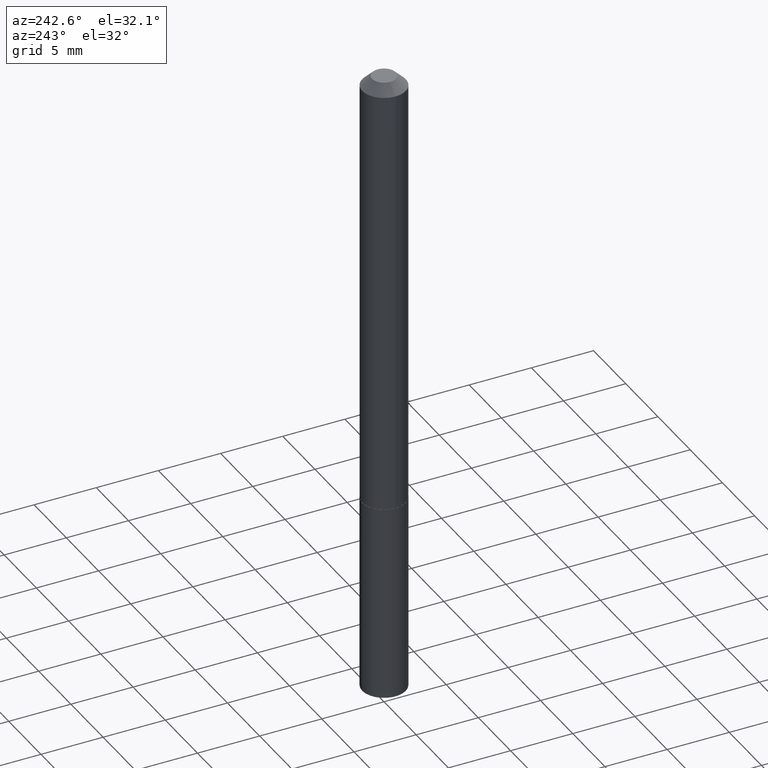
[diagram: clean part render]
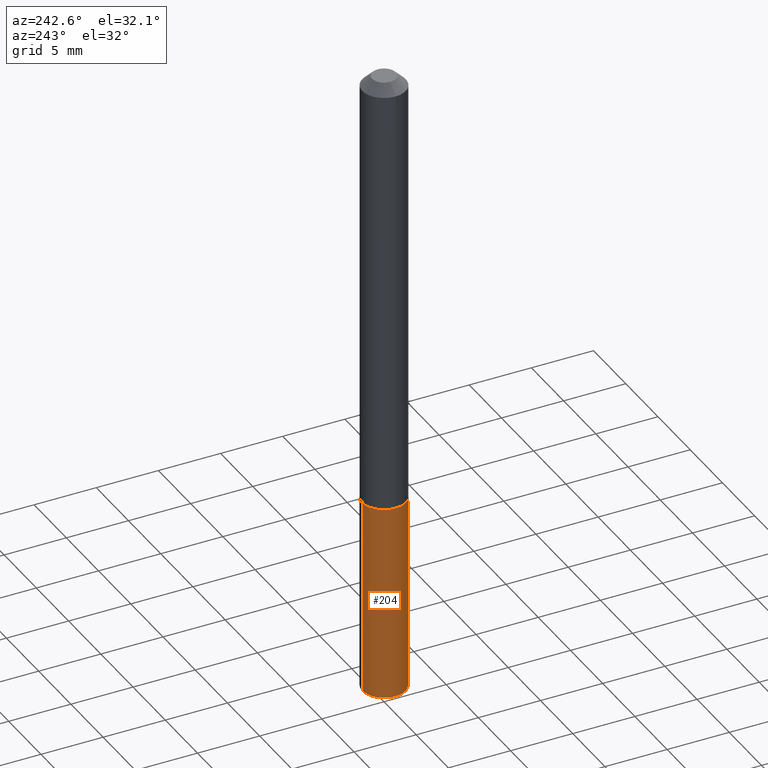
[diagram: same view with one face highlighted and labeled with its STEP entity id]
A machine part, auxiliary view. The second image highlights one B-rep face of the part: STEP entity #204.
In plain terms, the highlighted cylindrical surface (edge-blend (fillet) strip) has radius 1.7501 mm, axis along (-0, 0, 1).
Its self-contained STEP definition (entity closure, byte-faithful):
#6 = LINE ( 'NONE', #368, #240 ) ;
#12 = ORIENTED_EDGE ( 'NONE', *, *, #208, .F. ) ;
#39 = ORIENTED_EDGE ( 'NONE', *, *, #363, .T. ) ;
#55 = DIRECTION ( 'NONE',  ( -2.444479038339163535E-29, 3.492898742732666091E-15, 1.000000000000000000 ) ) ;
#58 = FACE_OUTER_BOUND ( 'NONE', #366, .T. ) ;
#79 = CARTESIAN_POINT ( 'NONE',  ( 3.417787203524348143E-29, -4.879694319167181624E-15, -1.397600000000000398 ) ) ;
#81 = CARTESIAN_POINT ( 'NONE',  ( 4.895639449387585498E-16, 0.06889999999999511793, -1.397600000000000620 ) ) ;
#89 = DIRECTION ( 'NONE',  ( -2.444479038339163815E-29, 3.492898742732665697E-15, 1.000000000000000000 ) ) ;
#104 = ORIENTED_EDGE ( 'NONE', *, *, #123, .F. ) ;
#106 = VERTEX_POINT ( 'NONE', #81 ) ;
#112 = CIRCLE ( 'NONE', #232, 0.06890000000000000291 ) ;
#114 = CARTESIAN_POINT ( 'NONE',  ( 4.895639449387583525E-16, 0.06889999999999295299, -2.022122450859060283 ) ) ;
#116 = CARTESIAN_POINT ( 'NONE',  ( 4.944419243621519326E-29, -7.061088002581114316E-15, -2.022122450859059839 ) ) ;
#123 = EDGE_CURVE ( 'NONE', #106, #371, #336, .T. ) ;
#148 = VECTOR ( 'NONE', #344, 39.37007874015748143 ) ;
#151 = DIRECTION ( 'NONE',  ( -6.982962677686265922E-15, -1.000000000000000000, 3.964946289788480896E-15 ) ) ;
#168 = VERTEX_POINT ( 'NONE', #114 ) ;
#170 = AXIS2_PLACEMENT_3D ( 'NONE', #79, #325, #151 ) ;
#173 = CARTESIAN_POINT ( 'NONE',  ( -4.811261284925343361E-16, -0.06890000000000705282, -2.022122450859059839 ) ) ;
#175 = LINE ( 'NONE', #390, #148 ) ;
#182 = VERTEX_POINT ( 'NONE', #173 ) ;
#199 = ORIENTED_EDGE ( 'NONE', *, *, #242, .T. ) ;
#204 = ADVANCED_FACE ( 'NONE', ( #58 ), #269, .T. ) ;
#208 = EDGE_CURVE ( 'NONE', #168, #106, #175, .T. ) ;
#232 = AXIS2_PLACEMENT_3D ( 'NONE', #116, #55, #243 ) ;
#236 = DIRECTION ( 'NONE',  ( -2.444479038339163535E-29, 3.492898742732666091E-15, 1.000000000000000000 ) ) ;
#239 = CARTESIAN_POINT ( 'NONE',  ( 3.417787203524348143E-29, -4.879694319167181624E-15, -1.397600000000000398 ) ) ;
#240 = VECTOR ( 'NONE', #89, 39.37007874015748143 ) ;
#242 = EDGE_CURVE ( 'NONE', #168, #182, #112, .T. ) ;
#243 = DIRECTION ( 'NONE',  ( -6.982962677686265922E-15, -1.000000000000000000, 3.964946289788480896E-15 ) ) ;
#269 = CYLINDRICAL_SURFACE ( 'NONE', #297, 0.06890000000000000291 ) ;
#272 = DIRECTION ( 'NONE',  ( -6.982962677686265922E-15, -1.000000000000000000, 3.964946289788480896E-15 ) ) ;
#297 = AXIS2_PLACEMENT_3D ( 'NONE', #239, #236, #272 ) ;
#310 = CARTESIAN_POINT ( 'NONE',  ( -4.811261284925496203E-16, -0.06890000000000488789, -1.397600000000000176 ) ) ;
#325 = DIRECTION ( 'NONE',  ( -2.444479038339163535E-29, 3.492898742732666091E-15, 1.000000000000000000 ) ) ;
#336 = CIRCLE ( 'NONE', #170, 0.06890000000000000291 ) ;
#344 = DIRECTION ( 'NONE',  ( -2.444479038339163815E-29, 3.492898742732665697E-15, 1.000000000000000000 ) ) ;
#363 = EDGE_CURVE ( 'NONE', #182, #371, #6, .T. ) ;
#366 = EDGE_LOOP ( 'NONE', ( #12, #199, #39, #104 ) ) ;
#368 = CARTESIAN_POINT ( 'NONE',  ( -4.811261284925496203E-16, -0.06890000000000488789, -1.397600000000000176 ) ) ;
#371 = VERTEX_POINT ( 'NONE', #310 ) ;
#390 = CARTESIAN_POINT ( 'NONE',  ( 4.895639449387431670E-16, 0.06889999999999511793, -1.397600000000000620 ) ) ;